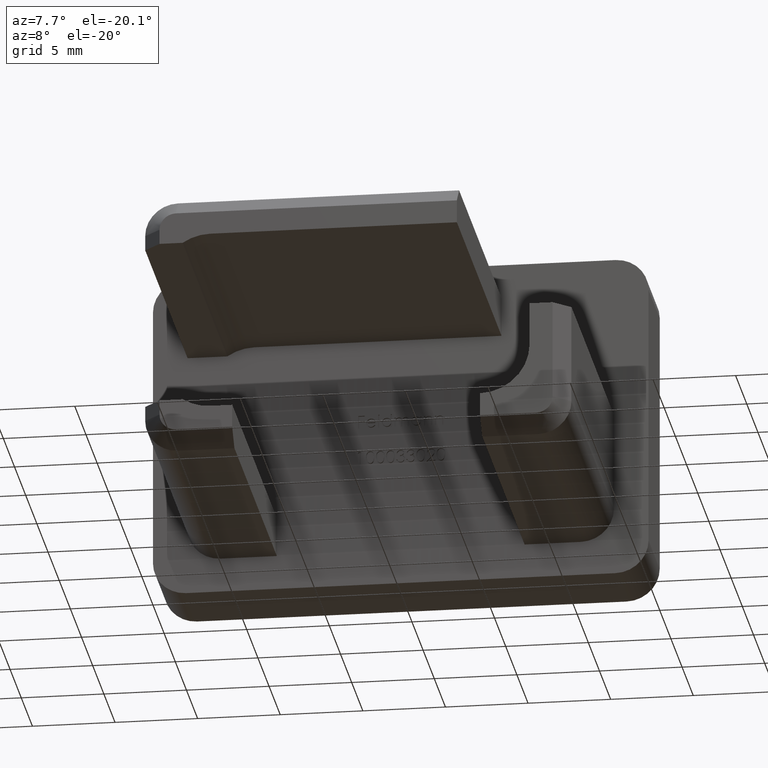
[diagram: clean part render]
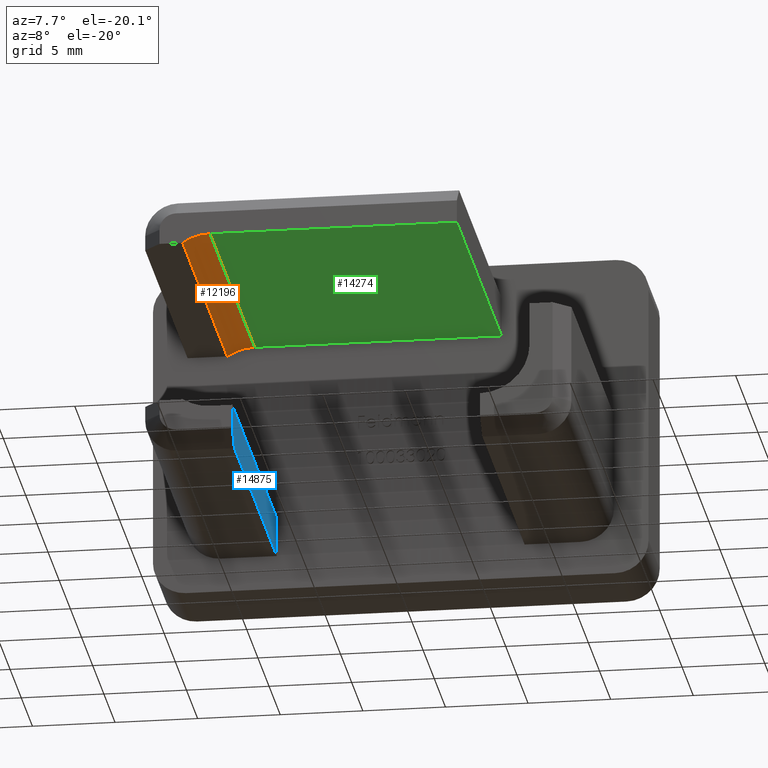
[diagram: same view with three faces highlighted in distinct colors, each labeled with its STEP entity id]
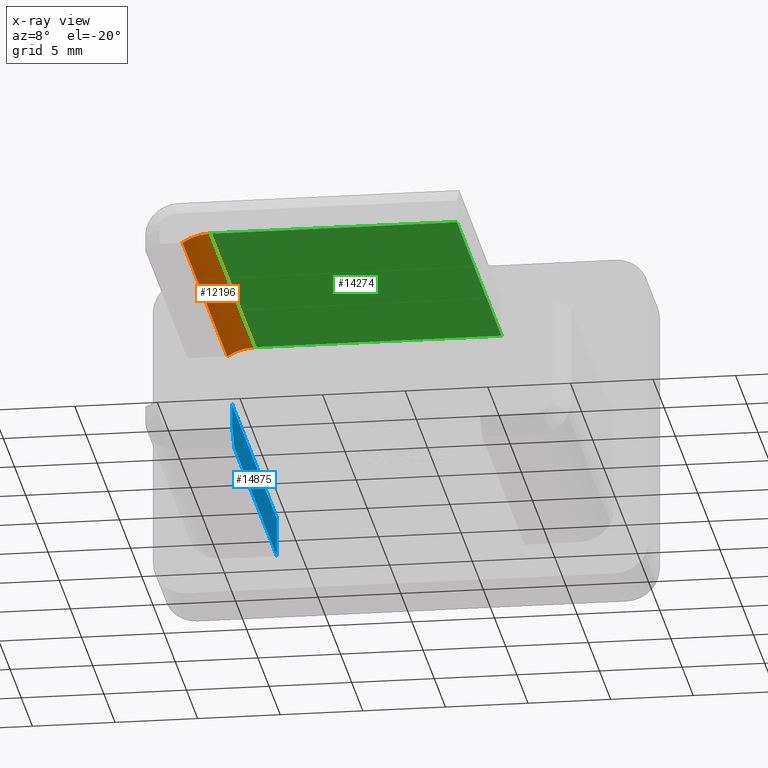
[diagram: x-ray of the same camera — body ghosted, the three highlighted faces saturated]
A machine part, auxiliary view with three faces highlighted in distinct colors.
The next image is the same camera in x-ray (body ghosted, the three faces saturated) — at least one of them is partly hidden behind the body in this view.
Their STEP definitions:

[orange] entity #12196 — the highlighted cylindrical surface (partial cylindrical patch) has radius 3 mm, axis along (0, 1, 0).
#762 = EDGE_CURVE ( 'NONE', #15087, #14152, #7449, .T. ) ;
#1051 = AXIS2_PLACEMENT_3D ( 'NONE', #12048, #7148, #9733 ) ;
#1114 = VERTEX_POINT ( 'NONE', #7472 ) ;
#1324 = ORIENTED_EDGE ( 'NONE', *, *, #2406, .T. ) ;
#2085 = CARTESIAN_POINT ( 'NONE',  ( -8.841687604822311600, 0.0000000000000000000, 5.499999999999997300 ) ) ;
#2289 = VECTOR ( 'NONE', #9493, 1000.000000000000000 ) ;
#2406 = EDGE_CURVE ( 'NONE', #1114, #7296, #13662, .T. ) ;
#2958 = DIRECTION ( 'NONE',  ( 0.0000000000000000000, 0.0000000000000000000, 1.000000000000000000 ) ) ;
#3291 = CARTESIAN_POINT ( 'NONE',  ( -10.50000000000001200, -20.00000000000000000, 4.999999999999996400 ) ) ;
#3974 = VECTOR ( 'NONE', #11689, 1000.000000000000000 ) ;
#4082 = DIRECTION ( 'NONE',  ( 0.0000000000000000000, 1.000000000000000000, 0.0000000000000000000 ) ) ;
#4864 = CIRCLE ( 'NONE', #1051, 3.000000000000000000 ) ;
#5495 = DIRECTION ( 'NONE',  ( 0.0000000000000000000, 0.0000000000000000000, 1.000000000000000000 ) ) ;
#6157 = FACE_OUTER_BOUND ( 'NONE', #13586, .T. ) ;
#6299 = ORIENTED_EDGE ( 'NONE', *, *, #762, .F. ) ;
#6863 = ORIENTED_EDGE ( 'NONE', *, *, #13324, .F. ) ;
#7148 = DIRECTION ( 'NONE',  ( -0.0000000000000000000, 1.000000000000000000, 0.0000000000000000000 ) ) ;
#7296 = VERTEX_POINT ( 'NONE', #7373 ) ;
#7373 = CARTESIAN_POINT ( 'NONE',  ( -10.50000000000001200, 0.0000000000000000000, 4.999999999999996400 ) ) ;
#7449 = LINE ( 'NONE', #13289, #2289 ) ;
#7472 = CARTESIAN_POINT ( 'NONE',  ( -10.50000000000001200, -20.00000000000000000, 4.999999999999996400 ) ) ;
#8047 = AXIS2_PLACEMENT_3D ( 'NONE', #10140, #11423, #5495 ) ;
#8167 = CARTESIAN_POINT ( 'NONE',  ( -8.841687604822311600, -20.00000000000000000, 5.499999999999998200 ) ) ;
#9091 = CIRCLE ( 'NONE', #8047, 3.000000000000000000 ) ;
#9493 = DIRECTION ( 'NONE',  ( 0.0000000000000000000, 1.000000000000000000, 0.0000000000000000000 ) ) ;
#9733 = DIRECTION ( 'NONE',  ( 0.0000000000000000000, 0.0000000000000000000, -1.000000000000000000 ) ) ;
#9759 = EDGE_CURVE ( 'NONE', #1114, #15087, #4864, .T. ) ;
#9951 = AXIS2_PLACEMENT_3D ( 'NONE', #14974, #4082, #2958 ) ;
#10140 = CARTESIAN_POINT ( 'NONE',  ( -8.841687604822311600, 0.0000000000000000000, 2.499999999999997800 ) ) ;
#11423 = DIRECTION ( 'NONE',  ( -0.0000000000000000000, -1.000000000000000000, -0.0000000000000000000 ) ) ;
#11689 = DIRECTION ( 'NONE',  ( -0.0000000000000000000, 1.000000000000000000, -0.0000000000000000000 ) ) ;
#12048 = CARTESIAN_POINT ( 'NONE',  ( -8.841687604822311600, -20.00000000000000000, 2.499999999999997800 ) ) ;
#12196 = ADVANCED_FACE ( 'NONE', ( #6157 ), #12384, .F. ) ;
#12384 = CYLINDRICAL_SURFACE ( 'NONE', #9951, 3.000000000000000000 ) ;
#13289 = CARTESIAN_POINT ( 'NONE',  ( -8.841687604822311600, -20.00000000000000000, 5.499999999999998200 ) ) ;
#13324 = EDGE_CURVE ( 'NONE', #14152, #7296, #9091, .T. ) ;
#13586 = EDGE_LOOP ( 'NONE', ( #15038, #1324, #6863, #6299 ) ) ;
#13662 = LINE ( 'NONE', #3291, #3974 ) ;
#14152 = VERTEX_POINT ( 'NONE', #2085 ) ;
#14974 = CARTESIAN_POINT ( 'NONE',  ( -8.841687604822311600, -20.00000000000000000, 2.499999999999997800 ) ) ;
#15038 = ORIENTED_EDGE ( 'NONE', *, *, #9759, .F. ) ;
#15087 = VERTEX_POINT ( 'NONE', #8167 ) ;

[blue] entity #14875 — the highlighted planar face has unit normal (-1, 0, 0).
#235 = VECTOR ( 'NONE', #11013, 1000.000000000000100 ) ;
#460 = FACE_OUTER_BOUND ( 'NONE', #13771, .T. ) ;
#596 = CARTESIAN_POINT ( 'NONE',  ( -7.500000000000001800, -20.00000000000000000, -5.499999999999996400 ) ) ;
#665 = VECTOR ( 'NONE', #14077, 1000.000000000000000 ) ;
#750 = CARTESIAN_POINT ( 'NONE',  ( -7.500000000000001800, 0.0000000000000000000, -7.899999999999997700 ) ) ;
#809 = CARTESIAN_POINT ( 'NONE',  ( -7.500000000000001800, -20.00000000000000000, -6.899999999999999500 ) ) ;
#1736 = VERTEX_POINT ( 'NONE', #8651 ) ;
#2967 = ORIENTED_EDGE ( 'NONE', *, *, #7727, .F. ) ;
#3788 = VERTEX_POINT ( 'NONE', #9646 ) ;
#3855 = EDGE_CURVE ( 'NONE', #3788, #10442, #13078, .T. ) ;
#4255 = DIRECTION ( 'NONE',  ( 0.0000000000000000000, 0.0000000000000000000, 1.000000000000000000 ) ) ;
#4645 = LINE ( 'NONE', #10137, #15650 ) ;
#5694 = EDGE_CURVE ( 'NONE', #10442, #9620, #7559, .T. ) ;
#6018 = VECTOR ( 'NONE', #15127, 1000.000000000000000 ) ;
#7145 = EDGE_CURVE ( 'NONE', #10387, #3788, #9054, .T. ) ;
#7483 = DIRECTION ( 'NONE',  ( -0.0000000000000000000, 1.000000000000000000, -0.0000000000000000000 ) ) ;
#7559 = LINE ( 'NONE', #13851, #6018 ) ;
#7684 = ORIENTED_EDGE ( 'NONE', *, *, #5694, .T. ) ;
#7727 = EDGE_CURVE ( 'NONE', #1736, #9620, #8863, .T. ) ;
#7807 = DIRECTION ( 'NONE',  ( -1.000000000000000000, 0.0000000000000000000, 0.0000000000000000000 ) ) ;
#8360 = VECTOR ( 'NONE', #7483, 1000.000000000000000 ) ;
#8651 = CARTESIAN_POINT ( 'NONE',  ( -7.500000000000001800, -20.00000000000000000, -5.499999999999996400 ) ) ;
#8702 = CARTESIAN_POINT ( 'NONE',  ( -7.500000000000001800, -20.00000000000000000, -7.899999999999997700 ) ) ;
#8863 = LINE ( 'NONE', #596, #665 ) ;
#9054 = LINE ( 'NONE', #14774, #235 ) ;
#9113 = DIRECTION ( 'NONE',  ( 0.0000000000000000000, 0.0000000000000000000, 1.000000000000000000 ) ) ;
#9620 = VERTEX_POINT ( 'NONE', #13363 ) ;
#9646 = CARTESIAN_POINT ( 'NONE',  ( -7.500000000000001800, -18.99999999999999600, -7.899999999999997700 ) ) ;
#10121 = ORIENTED_EDGE ( 'NONE', *, *, #7145, .T. ) ;
#10137 = CARTESIAN_POINT ( 'NONE',  ( -7.500000000000001800, -20.00000000000000000, -7.899999999999997700 ) ) ;
#10387 = VERTEX_POINT ( 'NONE', #809 ) ;
#10442 = VERTEX_POINT ( 'NONE', #750 ) ;
#10979 = AXIS2_PLACEMENT_3D ( 'NONE', #11394, #7807, #9113 ) ;
#11013 = DIRECTION ( 'NONE',  ( 0.0000000000000000000, 0.7071067811865500200, -0.7071067811865451300 ) ) ;
#11063 = ORIENTED_EDGE ( 'NONE', *, *, #12293, .F. ) ;
#11394 = CARTESIAN_POINT ( 'NONE',  ( -7.500000000000001800, -20.00000000000000000, -7.899999999999997700 ) ) ;
#12293 = EDGE_CURVE ( 'NONE', #10387, #1736, #4645, .T. ) ;
#12698 = PLANE ( 'NONE',  #10979 ) ;
#13078 = LINE ( 'NONE', #8702, #8360 ) ;
#13204 = ORIENTED_EDGE ( 'NONE', *, *, #3855, .T. ) ;
#13363 = CARTESIAN_POINT ( 'NONE',  ( -7.500000000000001800, 0.0000000000000000000, -5.499999999999996400 ) ) ;
#13771 = EDGE_LOOP ( 'NONE', ( #11063, #10121, #13204, #7684, #2967 ) ) ;
#13851 = CARTESIAN_POINT ( 'NONE',  ( -7.500000000000001800, -0.0000000000000000000, -7.899999999999997700 ) ) ;
#14077 = DIRECTION ( 'NONE',  ( -0.0000000000000000000, 1.000000000000000000, -0.0000000000000000000 ) ) ;
#14774 = CARTESIAN_POINT ( 'NONE',  ( -7.500000000000001800, -20.00000000000000000, -6.899999999999999500 ) ) ;
#14875 = ADVANCED_FACE ( 'NONE', ( #460 ), #12698, .F. ) ;
#15127 = DIRECTION ( 'NONE',  ( 0.0000000000000000000, 0.0000000000000000000, 1.000000000000000000 ) ) ;
#15650 = VECTOR ( 'NONE', #4255, 1000.000000000000000 ) ;

[green] entity #14274 — the highlighted planar face has unit normal (-0, 0, 1).
#56 = LINE ( 'NONE', #15341, #10564 ) ;
#762 = EDGE_CURVE ( 'NONE', #15087, #14152, #7449, .T. ) ;
#875 = FACE_OUTER_BOUND ( 'NONE', #2934, .T. ) ;
#1297 = CARTESIAN_POINT ( 'NONE',  ( 6.099999999999990800, -20.00000000000000000, 5.499999999999998200 ) ) ;
#1440 = ORIENTED_EDGE ( 'NONE', *, *, #7236, .F. ) ;
#1664 = CARTESIAN_POINT ( 'NONE',  ( -10.50000000000000900, 0.0000000000000000000, 5.499999999999998200 ) ) ;
#2085 = CARTESIAN_POINT ( 'NONE',  ( -8.841687604822311600, 0.0000000000000000000, 5.499999999999997300 ) ) ;
#2157 = ORIENTED_EDGE ( 'NONE', *, *, #5606, .T. ) ;
#2289 = VECTOR ( 'NONE', #9493, 1000.000000000000000 ) ;
#2934 = EDGE_LOOP ( 'NONE', ( #10977, #7347, #2157, #1440 ) ) ;
#3577 = DIRECTION ( 'NONE',  ( 1.000000000000000000, 0.0000000000000000000, 0.0000000000000000000 ) ) ;
#5606 = EDGE_CURVE ( 'NONE', #14152, #10966, #13790, .T. ) ;
#6533 = DIRECTION ( 'NONE',  ( 1.000000000000000000, 0.0000000000000000000, 0.0000000000000000000 ) ) ;
#6782 = VECTOR ( 'NONE', #9849, 1000.000000000000000 ) ;
#7236 = EDGE_CURVE ( 'NONE', #14526, #10966, #9992, .T. ) ;
#7347 = ORIENTED_EDGE ( 'NONE', *, *, #762, .T. ) ;
#7449 = LINE ( 'NONE', #13289, #2289 ) ;
#8167 = CARTESIAN_POINT ( 'NONE',  ( -8.841687604822311600, -20.00000000000000000, 5.499999999999998200 ) ) ;
#8183 = CARTESIAN_POINT ( 'NONE',  ( 6.099999999999990800, -20.00000000000000000, 5.499999999999998200 ) ) ;
#9008 = PLANE ( 'NONE',  #15571 ) ;
#9071 = VECTOR ( 'NONE', #6533, 1000.000000000000000 ) ;
#9493 = DIRECTION ( 'NONE',  ( 0.0000000000000000000, 1.000000000000000000, 0.0000000000000000000 ) ) ;
#9849 = DIRECTION ( 'NONE',  ( -0.0000000000000000000, 1.000000000000000000, -0.0000000000000000000 ) ) ;
#9992 = LINE ( 'NONE', #1297, #6782 ) ;
#10108 = CARTESIAN_POINT ( 'NONE',  ( -10.50000000000000900, -20.00000000000000000, 5.499999999999998200 ) ) ;
#10564 = VECTOR ( 'NONE', #3577, 1000.000000000000000 ) ;
#10966 = VERTEX_POINT ( 'NONE', #11755 ) ;
#10977 = ORIENTED_EDGE ( 'NONE', *, *, #12735, .F. ) ;
#11390 = DIRECTION ( 'NONE',  ( 1.000000000000000000, 0.0000000000000000000, 0.0000000000000000000 ) ) ;
#11755 = CARTESIAN_POINT ( 'NONE',  ( 6.099999999999990800, 0.0000000000000000000, 5.499999999999998200 ) ) ;
#12735 = EDGE_CURVE ( 'NONE', #15087, #14526, #56, .T. ) ;
#13289 = CARTESIAN_POINT ( 'NONE',  ( -8.841687604822311600, -20.00000000000000000, 5.499999999999998200 ) ) ;
#13790 = LINE ( 'NONE', #1664, #9071 ) ;
#14152 = VERTEX_POINT ( 'NONE', #2085 ) ;
#14274 = ADVANCED_FACE ( 'NONE', ( #875 ), #9008, .F. ) ;
#14526 = VERTEX_POINT ( 'NONE', #8183 ) ;
#15087 = VERTEX_POINT ( 'NONE', #8167 ) ;
#15160 = DIRECTION ( 'NONE',  ( -0.0000000000000000000, 0.0000000000000000000, 1.000000000000000000 ) ) ;
#15341 = CARTESIAN_POINT ( 'NONE',  ( -10.50000000000000900, -20.00000000000000000, 5.499999999999998200 ) ) ;
#15571 = AXIS2_PLACEMENT_3D ( 'NONE', #10108, #15160, #11390 ) ;